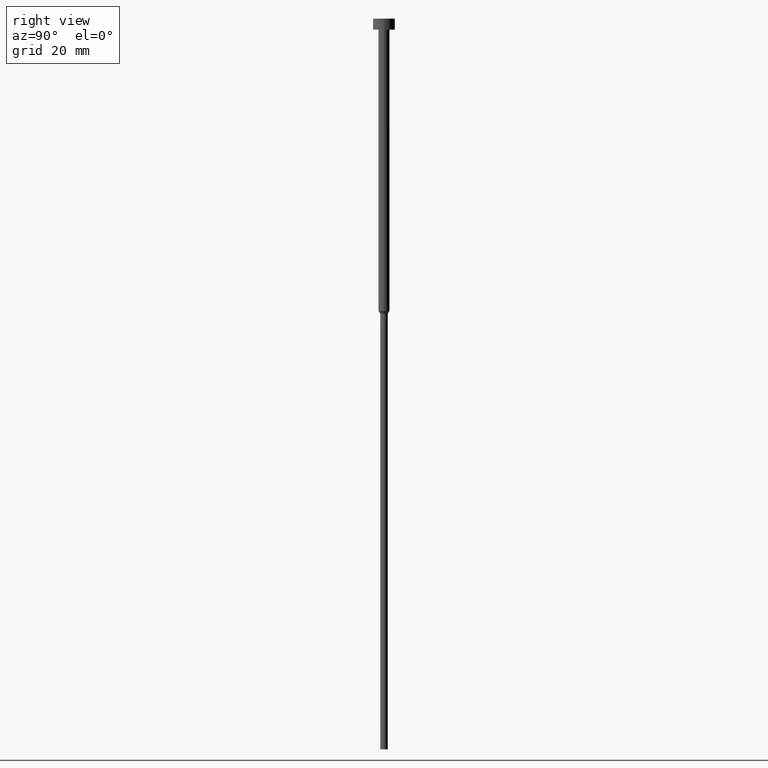
[diagram: clean part render]
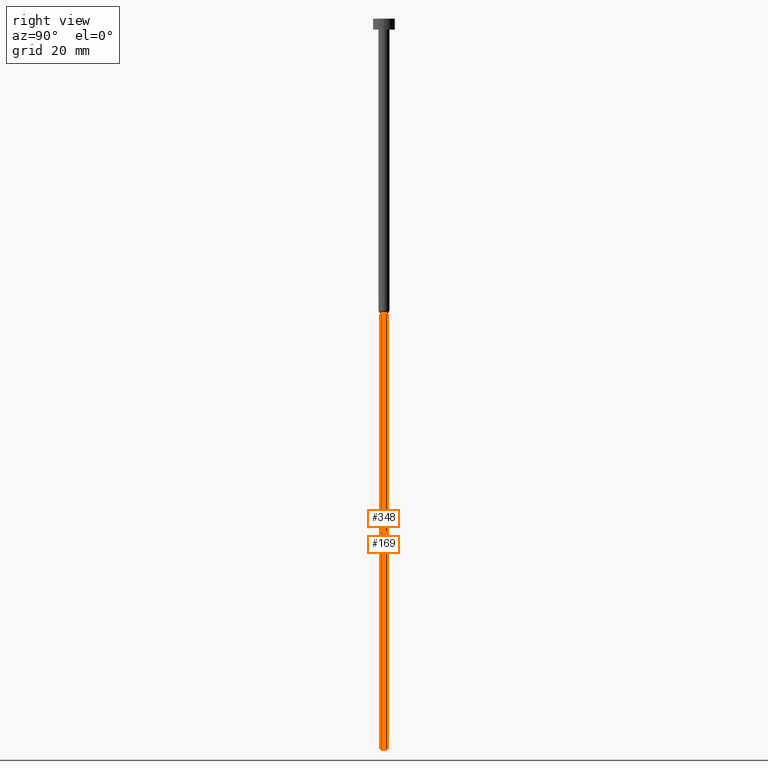
[diagram: same view with one multi-face feature highlighted, each face labeled with its STEP entity id]
A machine part, right view. The highlighted faces form ONE feature: a constant-radius fillet chain: 2 tangent blend faces with common blend radius 1.05 mm. The faces share edges in the B-rep.
Their STEP definitions:
[1] entity #348 (Cylinder):
#2 = AXIS2_PLACEMENT_3D ( 'NONE', #349, #266, #321 ) ;
#30 = FACE_OUTER_BOUND ( 'NONE', #211, .T. ) ;
#33 = LINE ( 'NONE', #114, #305 ) ;
#44 = VERTEX_POINT ( 'NONE', #132 ) ;
#47 = EDGE_CURVE ( 'NONE', #209, #345, #89, .T. ) ;
#72 = ORIENTED_EDGE ( 'NONE', *, *, #94, .F. ) ;
#79 = CARTESIAN_POINT ( 'NONE',  ( -1.050000000000000044, 1.285879139104720978E-16, 0.000000000000000000 ) ) ;
#89 = CIRCLE ( 'NONE', #230, 1.050000000000000044 ) ;
#90 = CARTESIAN_POINT ( 'NONE',  ( 0.000000000000000000, 0.000000000000000000, 0.000000000000000000 ) ) ;
#94 = EDGE_CURVE ( 'NONE', #310, #209, #326, .T. ) ;
#105 = DIRECTION ( 'NONE',  ( -0.000000000000000000, -0.000000000000000000, 1.000000000000000000 ) ) ;
#106 = EDGE_CURVE ( 'NONE', #310, #44, #134, .T. ) ;
#114 = CARTESIAN_POINT ( 'NONE',  ( 1.050000000000000044, 0.000000000000000000, 0.000000000000000000 ) ) ;
#115 = VECTOR ( 'NONE', #275, 1000.000000000000000 ) ;
#118 = CARTESIAN_POINT ( 'NONE',  ( 1.050000000000000044, 0.000000000000000000, -80.77942286340598343 ) ) ;
#125 = ORIENTED_EDGE ( 'NONE', *, *, #47, .F. ) ;
#132 = CARTESIAN_POINT ( 'NONE',  ( 1.050000000000000044, 0.000000000000000000, -200.0000000000000000 ) ) ;
#134 = CIRCLE ( 'NONE', #2, 1.050000000000000044 ) ;
#139 = CARTESIAN_POINT ( 'NONE',  ( 0.000000000000000000, 0.000000000000000000, -80.77942286340598343 ) ) ;
#145 = DIRECTION ( 'NONE',  ( 1.000000000000000000, 0.000000000000000000, 0.000000000000000000 ) ) ;
#154 = ORIENTED_EDGE ( 'NONE', *, *, #277, .T. ) ;
#159 = ORIENTED_EDGE ( 'NONE', *, *, #106, .T. ) ;
#172 = AXIS2_PLACEMENT_3D ( 'NONE', #90, #177, #145 ) ;
#177 = DIRECTION ( 'NONE',  ( -0.000000000000000000, -0.000000000000000000, 1.000000000000000000 ) ) ;
#209 = VERTEX_POINT ( 'NONE', #328 ) ;
#211 = EDGE_LOOP ( 'NONE', ( #72, #159, #154, #125 ) ) ;
#230 = AXIS2_PLACEMENT_3D ( 'NONE', #139, #105, #347 ) ;
#231 = DIRECTION ( 'NONE',  ( -0.000000000000000000, -0.000000000000000000, 1.000000000000000000 ) ) ;
#266 = DIRECTION ( 'NONE',  ( -0.000000000000000000, -0.000000000000000000, 1.000000000000000000 ) ) ;
#275 = DIRECTION ( 'NONE',  ( -0.000000000000000000, -0.000000000000000000, 1.000000000000000000 ) ) ;
#277 = EDGE_CURVE ( 'NONE', #44, #345, #33, .T. ) ;
#286 = CYLINDRICAL_SURFACE ( 'NONE', #172, 1.050000000000000044 ) ;
#305 = VECTOR ( 'NONE', #231, 1000.000000000000000 ) ;
#310 = VERTEX_POINT ( 'NONE', #332 ) ;
#321 = DIRECTION ( 'NONE',  ( 1.000000000000000000, 0.000000000000000000, 0.000000000000000000 ) ) ;
#326 = LINE ( 'NONE', #79, #115 ) ;
#328 = CARTESIAN_POINT ( 'NONE',  ( -1.050000000000000044, 1.285879139104720978E-16, -80.77942286340598343 ) ) ;
#332 = CARTESIAN_POINT ( 'NONE',  ( -1.050000000000000044, 1.285879139104720978E-16, -200.0000000000000000 ) ) ;
#345 = VERTEX_POINT ( 'NONE', #118 ) ;
#347 = DIRECTION ( 'NONE',  ( 1.000000000000000000, 0.000000000000000000, 0.000000000000000000 ) ) ;
#348 = ADVANCED_FACE ( 'NONE', ( #30 ), #286, .T. ) ;
#349 = CARTESIAN_POINT ( 'NONE',  ( 0.000000000000000000, 0.000000000000000000, -200.0000000000000000 ) ) ;
[2] entity #169 (Cylinder):
#21 = CIRCLE ( 'NONE', #303, 1.050000000000000044 ) ;
#33 = LINE ( 'NONE', #114, #305 ) ;
#35 = EDGE_LOOP ( 'NONE', ( #185, #65, #113, #283 ) ) ;
#44 = VERTEX_POINT ( 'NONE', #132 ) ;
#61 = EDGE_CURVE ( 'NONE', #44, #310, #253, .T. ) ;
#65 = ORIENTED_EDGE ( 'NONE', *, *, #94, .T. ) ;
#70 = AXIS2_PLACEMENT_3D ( 'NONE', #271, #192, #273 ) ;
#79 = CARTESIAN_POINT ( 'NONE',  ( -1.050000000000000044, 1.285879139104720978E-16, 0.000000000000000000 ) ) ;
#94 = EDGE_CURVE ( 'NONE', #310, #209, #326, .T. ) ;
#110 = DIRECTION ( 'NONE',  ( 1.000000000000000000, 0.000000000000000000, 0.000000000000000000 ) ) ;
#112 = DIRECTION ( 'NONE',  ( 1.000000000000000000, 0.000000000000000000, 0.000000000000000000 ) ) ;
#113 = ORIENTED_EDGE ( 'NONE', *, *, #201, .F. ) ;
#114 = CARTESIAN_POINT ( 'NONE',  ( 1.050000000000000044, 0.000000000000000000, 0.000000000000000000 ) ) ;
#115 = VECTOR ( 'NONE', #275, 1000.000000000000000 ) ;
#118 = CARTESIAN_POINT ( 'NONE',  ( 1.050000000000000044, 0.000000000000000000, -80.77942286340598343 ) ) ;
#132 = CARTESIAN_POINT ( 'NONE',  ( 1.050000000000000044, 0.000000000000000000, -200.0000000000000000 ) ) ;
#135 = FACE_OUTER_BOUND ( 'NONE', #35, .T. ) ;
#169 = ADVANCED_FACE ( 'NONE', ( #135 ), #248, .T. ) ;
#185 = ORIENTED_EDGE ( 'NONE', *, *, #61, .T. ) ;
#192 = DIRECTION ( 'NONE',  ( -0.000000000000000000, -0.000000000000000000, 1.000000000000000000 ) ) ;
#201 = EDGE_CURVE ( 'NONE', #345, #209, #21, .T. ) ;
#209 = VERTEX_POINT ( 'NONE', #328 ) ;
#222 = DIRECTION ( 'NONE',  ( -0.000000000000000000, -0.000000000000000000, 1.000000000000000000 ) ) ;
#231 = DIRECTION ( 'NONE',  ( -0.000000000000000000, -0.000000000000000000, 1.000000000000000000 ) ) ;
#248 = CYLINDRICAL_SURFACE ( 'NONE', #338, 1.050000000000000044 ) ;
#253 = CIRCLE ( 'NONE', #70, 1.050000000000000044 ) ;
#271 = CARTESIAN_POINT ( 'NONE',  ( 0.000000000000000000, 0.000000000000000000, -200.0000000000000000 ) ) ;
#273 = DIRECTION ( 'NONE',  ( 1.000000000000000000, 0.000000000000000000, 0.000000000000000000 ) ) ;
#275 = DIRECTION ( 'NONE',  ( -0.000000000000000000, -0.000000000000000000, 1.000000000000000000 ) ) ;
#277 = EDGE_CURVE ( 'NONE', #44, #345, #33, .T. ) ;
#283 = ORIENTED_EDGE ( 'NONE', *, *, #277, .F. ) ;
#303 = AXIS2_PLACEMENT_3D ( 'NONE', #355, #330, #110 ) ;
#305 = VECTOR ( 'NONE', #231, 1000.000000000000000 ) ;
#310 = VERTEX_POINT ( 'NONE', #332 ) ;
#326 = LINE ( 'NONE', #79, #115 ) ;
#328 = CARTESIAN_POINT ( 'NONE',  ( -1.050000000000000044, 1.285879139104720978E-16, -80.77942286340598343 ) ) ;
#330 = DIRECTION ( 'NONE',  ( -0.000000000000000000, -0.000000000000000000, 1.000000000000000000 ) ) ;
#332 = CARTESIAN_POINT ( 'NONE',  ( -1.050000000000000044, 1.285879139104720978E-16, -200.0000000000000000 ) ) ;
#338 = AXIS2_PLACEMENT_3D ( 'NONE', #353, #222, #112 ) ;
#345 = VERTEX_POINT ( 'NONE', #118 ) ;
#353 = CARTESIAN_POINT ( 'NONE',  ( 0.000000000000000000, 0.000000000000000000, 0.000000000000000000 ) ) ;
#355 = CARTESIAN_POINT ( 'NONE',  ( 0.000000000000000000, 0.000000000000000000, -80.77942286340598343 ) ) ;